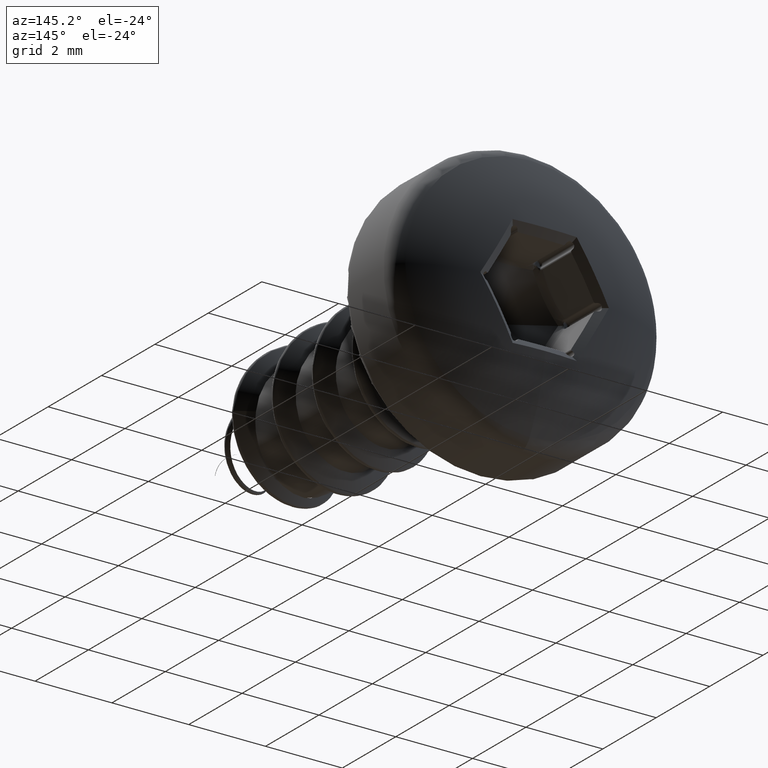
[diagram: clean part render]
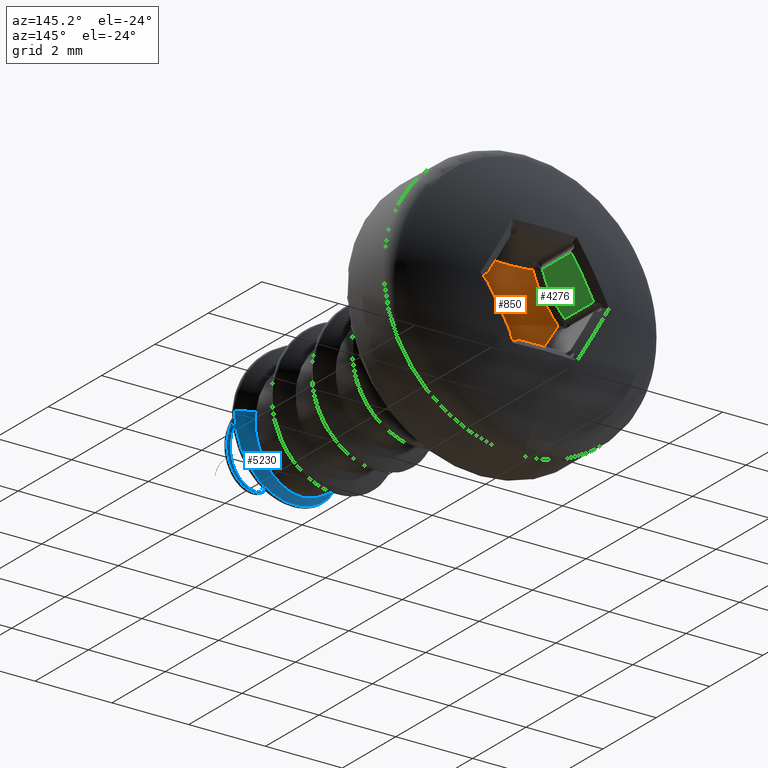
[diagram: same view with three faces highlighted in distinct colors, each labeled with its STEP entity id]
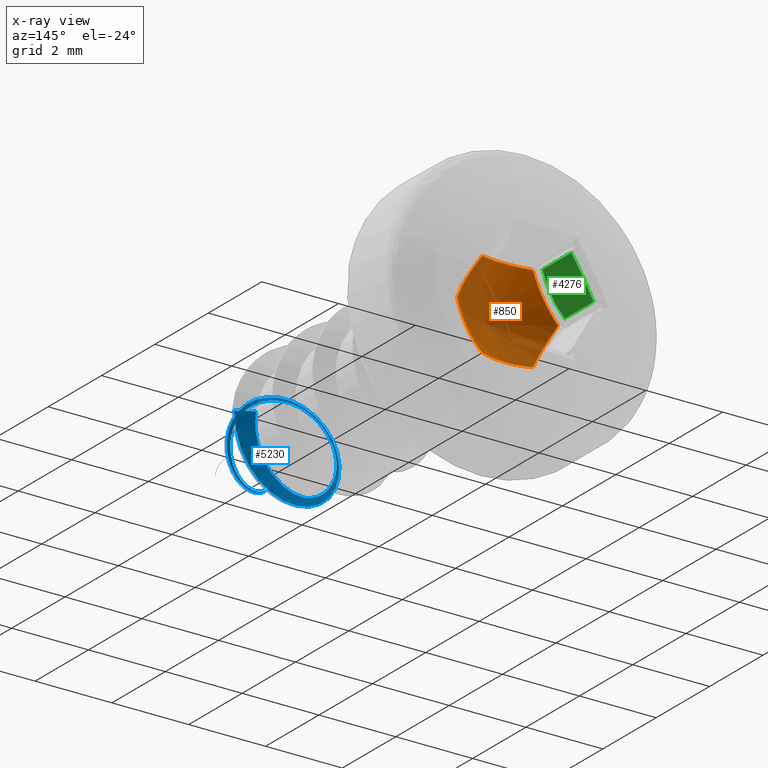
[diagram: x-ray of the same camera — body ghosted, the three highlighted faces saturated]
A machine part, auxiliary view with three faces highlighted in distinct colors.
The next image is the same camera in x-ray (body ghosted, the three faces saturated) — at least one of them is partly hidden behind the body in this view.
Their STEP definitions:

[orange] entity #850 — the highlighted conical surface has half-angle 59 deg.
#2 = EDGE_CURVE ( 'NONE', #4611, #783, #5808, .T. ) ;
#166 = CARTESIAN_POINT ( 'NONE',  ( -1.112084957319993572, 4.725961971731141631, 0.3796862885469854954 ) ) ;
#194 = EDGE_CURVE ( 'NONE', #783, #915, #5091, .T. ) ;
#229 = ORIENTED_EDGE ( 'NONE', *, *, #194, .T. ) ;
#273 = CARTESIAN_POINT ( 'NONE',  ( 0.4423877625365978394, 4.762312854704135567, 1.146654470488976063 ) ) ;
#329 = CONICAL_SURFACE ( 'NONE', #3082, 1664.279482350498029, 1.029744258676649205 ) ;
#434 = CARTESIAN_POINT ( 'NONE',  ( -0.6577215901401132214, 4.823130403246240760, -1.139207211357669003 ) ) ;
#697 = CARTESIAN_POINT ( 'NONE',  ( 0.6577215901401139986, 4.823130403246240760, 1.139207211357668559 ) ) ;
#718 = CARTESIAN_POINT ( 'NONE',  ( -0.6577215901401132214, 4.823130403246240760, -1.139207211357669003 ) ) ;
#719 = FACE_OUTER_BOUND ( 'NONE', #2795, .T. ) ;
#783 = VERTEX_POINT ( 'NONE', #2139 ) ;
#850 = ADVANCED_FACE ( 'NONE', ( #719 ), #329, .F. ) ;
#907 = ORIENTED_EDGE ( 'NONE', *, *, #2, .T. ) ;
#915 = VERTEX_POINT ( 'NONE', #718 ) ;
#1052 = EDGE_CURVE ( 'NONE', #915, #4559, #5213, .T. ) ;
#1126 = CARTESIAN_POINT ( 'NONE',  ( -0.4423875992760734621, 4.762312808593848423, -1.146654476135295697 ) ) ;
#1288 = CARTESIAN_POINT ( 'NONE',  ( 0.7718056320376502910, 4.762330115394765251, -0.9564981454924779136 ) ) ;
#1312 = ORIENTED_EDGE ( 'NONE', *, *, #5253, .T. ) ;
#1593 = CARTESIAN_POINT ( 'NONE',  ( -1.315443180280241098, 4.823130403246093323, 3.604363542660555098E-14 ) ) ;
#1700 = EDGE_CURVE ( 'NONE', #4434, #4015, #2375, .T. ) ;
#1716 = CARTESIAN_POINT ( 'NONE',  ( 1.215157610334600680, 4.762872753609168619, -0.1884570986649835023 ) ) ;
#1756 = CARTESIAN_POINT ( 'NONE',  ( -0.6577215901401055609, 4.823130403246195463, 1.139207211357677885 ) ) ;
#1770 = CARTESIAN_POINT ( 'NONE',  ( 1.108157441244321362, 4.725104345526310645, 0.3867689916802747319 ) ) ;
#1923 = DIRECTION ( 'NONE',  ( 9.376017610177029893E-17, 1.000000000000000000, -0.000000000000000000 ) ) ;
#2139 = CARTESIAN_POINT ( 'NONE',  ( 0.6577215901401056719, 4.823130403246196352, -1.139207211357678773 ) ) ;
#2140 = CARTESIAN_POINT ( 'NONE',  ( 0.6577215901401139986, 4.823130403246240760, 1.139207211357668559 ) ) ;
#2183 = CARTESIAN_POINT ( 'NONE',  ( -0.4439613397488968993, 4.762757286076377383, 1.146600048769018887 ) ) ;
#2354 = CARTESIAN_POINT ( 'NONE',  ( 1.112084957319994016, 4.725961971731145184, -0.3796862885469861060 ) ) ;
#2375 = B_SPLINE_CURVE_WITH_KNOTS ( 'NONE', 3,
 ( #3140, #2183, #4622, #4055, #273, #2140 ),
 .UNSPECIFIED., .F., .F.,
 ( 4, 2, 4 ),
 ( 0.0001355486895624895033, 0.0007987343023282008313, 0.001461919915093911997 ),
 .UNSPECIFIED. ) ;
#2412 = DIRECTION ( 'NONE',  ( -1.000000000000000000, 1.334178587669859971E-16, 0.000000000000000000 ) ) ;
#2484 = CARTESIAN_POINT ( 'NONE',  ( -1.215157610334600236, 4.762872753609167731, 0.1884570986649827806 ) ) ;
#2529 = CARTESIAN_POINT ( 'NONE',  ( 0.4439613564358866893, 4.762757290789347842, -1.146600048191904753 ) ) ;
#2544 = ORIENTED_EDGE ( 'NONE', *, *, #1052, .T. ) ;
#2696 = CARTESIAN_POINT ( 'NONE',  ( 0.8890304928133409001, 4.725104345526317751, -0.7663079996702556462 ) ) ;
#2778 = EDGE_CURVE ( 'NONE', #4559, #4434, #5944, .T. ) ;
#2795 = EDGE_LOOP ( 'NONE', ( #4785, #3168, #1312, #907, #229, #2544 ) ) ;
#3015 = CARTESIAN_POINT ( 'NONE',  ( -0.8890304928133403450, 4.725104345526315974, 0.7663079996702547581 ) ) ;
#3044 = CARTESIAN_POINT ( 'NONE',  ( -0.6577215901401132214, 4.823130403246240760, -1.139207211357669003 ) ) ;
#3082 = AXIS2_PLACEMENT_3D ( 'NONE', #6154, #1923, #2412 ) ;
#3140 = CARTESIAN_POINT ( 'NONE',  ( -0.6577215901401055609, 4.823130403246195463, 1.139207211357677885 ) ) ;
#3168 = ORIENTED_EDGE ( 'NONE', *, *, #1700, .T. ) ;
#3232 = CARTESIAN_POINT ( 'NONE',  ( -1.214254508688005219, 4.762330115394759922, -0.1901542113822895785 ) ) ;
#3254 = CARTESIAN_POINT ( 'NONE',  ( -0.7707874401346460624, 4.762872753609186383, -0.9581288108193288799 ) ) ;
#3612 = CARTESIAN_POINT ( 'NONE',  ( 1.315443180280241986, 4.823130403246093323, -3.649114479088768456E-14 ) ) ;
#3752 = CARTESIAN_POINT ( 'NONE',  ( -1.108157441244321140, 4.725104345526309757, -0.3867689916802747874 ) ) ;
#3839 = CARTESIAN_POINT ( 'NONE',  ( -1.315443180280241098, 4.823130403246093323, 3.604363542660555098E-14 ) ) ;
#3875 = CARTESIAN_POINT ( 'NONE',  ( 1.315443180280241986, 4.823130403246093323, -3.649114479088768456E-14 ) ) ;
#3934 = CARTESIAN_POINT ( 'NONE',  ( -0.6577215901401055609, 4.823130403246195463, 1.139207211357677885 ) ) ;
#3962 = CARTESIAN_POINT ( 'NONE',  ( -0.2227232109130119486, 4.725349403839818940, -1.153036981484701684 ) ) ;
#4015 = VERTEX_POINT ( 'NONE', #4162 ) ;
#4027 = CARTESIAN_POINT ( 'NONE',  ( 0.7707874401346467286, 4.762872753609187271, 0.9581288108193286579 ) ) ;
#4055 = CARTESIAN_POINT ( 'NONE',  ( 0.2227242758644486786, 4.725349469352304155, 1.153036970788550386 ) ) ;
#4095 = CARTESIAN_POINT ( 'NONE',  ( 0.6577215901401056719, 4.823130403246196352, -1.139207211357678773 ) ) ;
#4162 = CARTESIAN_POINT ( 'NONE',  ( 0.6577215901401139986, 4.823130403246240760, 1.139207211357668559 ) ) ;
#4218 = CARTESIAN_POINT ( 'NONE',  ( -0.8848604500102693615, 4.725961971731153177, -0.7732506799322318436 ) ) ;
#4434 = VERTEX_POINT ( 'NONE', #1756 ) ;
#4559 = VERTEX_POINT ( 'NONE', #3839 ) ;
#4611 = VERTEX_POINT ( 'NONE', #3875 ) ;
#4622 = CARTESIAN_POINT ( 'NONE',  ( -0.2261135263075134405, 4.725710431348953300, 1.152978036664366712 ) ) ;
#4785 = ORIENTED_EDGE ( 'NONE', *, *, #2778, .T. ) ;
#4909 = CARTESIAN_POINT ( 'NONE',  ( -0.7718056320376500690, 4.762330115394767027, 0.9564981454924769144 ) ) ;
#5091 = B_SPLINE_CURVE_WITH_KNOTS ( 'NONE', 3,
 ( #5395, #2529, #5876, #3962, #1126, #3044 ),
 .UNSPECIFIED., .F., .F.,
 ( 4, 2, 4 ),
 ( 0.0001355485788095878890, 0.0007987336865442538859, 0.001461918794278919747 ),
 .UNSPECIFIED. ) ;
#5213 = B_SPLINE_CURVE_WITH_KNOTS ( 'NONE', 3,
 ( #434, #3254, #4218, #3752, #3232, #5681 ),
 .UNSPECIFIED., .F., .F.,
 ( 4, 2, 4 ),
 ( 0.0001353299120563234011, 0.0007963451392634085914, 0.001457360366470493917 ),
 .UNSPECIFIED. ) ;
#5253 = EDGE_CURVE ( 'NONE', #4015, #4611, #6121, .T. ) ;
#5395 = CARTESIAN_POINT ( 'NONE',  ( 0.6577215901401056719, 4.823130403246196352, -1.139207211357678773 ) ) ;
#5562 = CARTESIAN_POINT ( 'NONE',  ( 0.8848604500102698056, 4.725961971731153177, 0.7732506799322316215 ) ) ;
#5578 = CARTESIAN_POINT ( 'NONE',  ( 1.214254508688005885, 4.762330115394760810, 0.1901542113822893287 ) ) ;
#5681 = CARTESIAN_POINT ( 'NONE',  ( -1.315443180280241098, 4.823130403246093323, 3.604363542660555098E-14 ) ) ;
#5808 = B_SPLINE_CURVE_WITH_KNOTS ( 'NONE', 3,
 ( #3612, #1716, #2354, #2696, #1288, #4095 ),
 .UNSPECIFIED., .F., .F.,
 ( 4, 2, 4 ),
 ( 0.0001353299120520994037, 0.0007963451392592160900, 0.001457360366466332749 ),
 .UNSPECIFIED. ) ;
#5876 = CARTESIAN_POINT ( 'NONE',  ( 0.2261137077034176268, 4.725710497863953918, -1.152978025804536122 ) ) ;
#5944 = B_SPLINE_CURVE_WITH_KNOTS ( 'NONE', 3,
 ( #1593, #2484, #166, #3015, #4909, #3934 ),
 .UNSPECIFIED., .F., .F.,
 ( 4, 2, 4 ),
 ( 0.0001353299120521001626, 0.0007963451392592165237, 0.001457360366466332749 ),
 .UNSPECIFIED. ) ;
#6108 = CARTESIAN_POINT ( 'NONE',  ( 1.315443180280241986, 4.823130403246093323, -3.649114479088768456E-14 ) ) ;
#6121 = B_SPLINE_CURVE_WITH_KNOTS ( 'NONE', 3,
 ( #697, #4027, #5562, #1770, #5578, #6108 ),
 .UNSPECIFIED., .F., .F.,
 ( 4, 2, 4 ),
 ( 0.0001353299120563271145, 0.0007963451392634121693, 0.001457360366470496953 ),
 .UNSPECIFIED. ) ;
#6154 = CARTESIAN_POINT ( 'NONE',  ( 9.376017610177030415E-14, 1004.032732399647443, 0.000000000000000000 ) ) ;

[blue] entity #5230 — the highlighted face is a freeform B-spline surface patch.
#15 = CARTESIAN_POINT ( 'NONE',  ( 0.2910724249127586427, -2.985507007251310796, -1.398683227082746283 ) ) ;
#50 = VERTEX_POINT ( 'NONE', #3637 ) ;
#65 = EDGE_CURVE ( 'NONE', #4974, #5297, #5767, .T. ) ;
#140 = CARTESIAN_POINT ( 'NONE',  ( -0.3500000000000081934, -4.782457351945705426, -0.6062177826491028654 ) ) ;
#202 = CARTESIAN_POINT ( 'NONE',  ( -1.215112936446172354, -3.365790685278895911, -1.026896597665686972 ) ) ;
#224 = CARTESIAN_POINT ( 'NONE',  ( 1.425000000000000044, -2.551517244269857265, 0.000000000000000000 ) ) ;
#245 = CARTESIAN_POINT ( 'NONE',  ( -0.3286370635538389262, -3.199124018612524267, -1.646956836518761902 ) ) ;
#270 = CARTESIAN_POINT ( 'NONE',  ( 1.377542810691361419, -2.635885557437680937, -0.5035967048519606193 ) ) ;
#313 = CARTESIAN_POINT ( 'NONE',  ( 1.825000000000000622, -2.782457351945706758, 0.000000000000000000 ) ) ;
#346 = CARTESIAN_POINT ( 'NONE',  ( 0.8637158738195148677, -4.312787725621811674, -0.2407972799450457946 ) ) ;
#412 = CARTESIAN_POINT ( 'NONE',  ( -1.152504385821125243, -3.547792733181664993, 0.4421764295433257552 ) ) ;
#441 = EDGE_LOOP ( 'NONE', ( #5943, #2176, #965, #4777, #2056 ) ) ;
#461 = CARTESIAN_POINT ( 'NONE',  ( 1.425000000000000044, -2.551517244269857265, 0.000000000000000000 ) ) ;
#526 = VERTEX_POINT ( 'NONE', #4676 ) ;
#527 = CARTESIAN_POINT ( 'NONE',  ( 0.7713478661076452747, -2.869592576071958057, -1.215508522049268070 ) ) ;
#543 = CARTESIAN_POINT ( 'NONE',  ( 0.9343750198220055481, -4.365790685278921224, -0.3425208174233895786 ) ) ;
#722 = CARTESIAN_POINT ( 'NONE',  ( -0.2495570135497496567, -2.968183910936674774, -1.230733509324474895 ) ) ;
#744 = CARTESIAN_POINT ( 'NONE',  ( 0.3769508537673975090, -4.218183910936516234, -0.3452838060096300454 ) ) ;
#762 = CARTESIAN_POINT ( 'NONE',  ( -1.449999989442328774, -3.449124018612379494, -0.4897829845694904316 ) ) ;
#794 = CARTESIAN_POINT ( 'NONE',  ( 0.1971361078741272477, -4.574742686219300580, -0.7561169507714333715 ) ) ;
#813 = CARTESIAN_POINT ( 'NONE',  ( -0.09033359418842525079, -4.671438926885847387, -0.7335565906680792114 ) ) ;
#878 = CARTESIAN_POINT ( 'NONE',  ( -0.2212017914155754994, -3.100000000000000533, -1.407726808537274499 ) ) ;
#897 = CARTESIAN_POINT ( 'NONE',  ( -0.5048859157163844147, -3.151058054952980747, -1.316550182115567624 ) ) ;
#965 = ORIENTED_EDGE ( 'NONE', *, *, #65, .F. ) ;
#993 = EDGE_CURVE ( 'NONE', #526, #50, #3402, .T. ) ;
#1111 = CARTESIAN_POINT ( 'NONE',  ( 0.2452323364718278498, -3.949124018612154341, 1.207971280575494077 ) ) ;
#1187 = CARTESIAN_POINT ( 'NONE',  ( -0.8941929864502579095, -3.134850577603046418, -0.7502996018324240568 ) ) ;
#1224 = CARTESIAN_POINT ( 'NONE',  ( 1.028124980177995473, -4.199124018612486076, 0.3425208174233680958 ) ) ;
#1243 = CARTESIAN_POINT ( 'NONE',  ( 0.4862695559858366545, -3.969533286281078599, 0.9282655203556284818 ) ) ;
#1262 = CARTESIAN_POINT ( 'NONE',  ( 0.3547111888877985120, -3.935245557336744859, 1.002176578374779803 ) ) ;
#1305 = CARTESIAN_POINT ( 'NONE',  ( -0.07471275920396201753, -3.834038306412550501, 1.105289202884143895 ) ) ;
#1324 = CARTESIAN_POINT ( 'NONE',  ( 1.425000000000000044, -2.551517244269857265, 0.000000000000000000 ) ) ;
#1389 = CARTESIAN_POINT ( 'NONE',  ( -1.250922048510225260, -3.486531909726636069, 0.1630749038296160913 ) ) ;
#1497 = CARTESIAN_POINT ( 'NONE',  ( -0.1614524739692214383, -4.698957933558363997, -0.7693102893549922383 ) ) ;
#1519 = CARTESIAN_POINT ( 'NONE',  ( 1.004358178716948213, -2.802915327783519928, -1.016042825512379011 ) ) ;
#1573 = CARTESIAN_POINT ( 'NONE',  ( 1.777580188601849631, -2.866759215503855263, -0.6444492065217167776 ) ) ;
#1651 = CARTESIAN_POINT ( 'NONE',  ( 0.06367414623259583240, -4.384850577603197408, -0.4179010810754099636 ) ) ;
#1673 = CARTESIAN_POINT ( 'NONE',  ( 0.2304835981738375117, -2.884850577603180533, -1.295872157498531019 ) ) ;
#1691 = CARTESIAN_POINT ( 'NONE',  ( -0.1614524739692214383, -4.698957933558363997, -0.7693102893549922383 ) ) ;
#1710 = CARTESIAN_POINT ( 'NONE',  ( 0.3095636470396072037, -3.115790685279030026, -1.712095485350091595 ) ) ;
#1850 = CARTESIAN_POINT ( 'NONE',  ( -0.8870928577670640358, -3.639911880962698909, 0.7988603505892986067 ) ) ;
#1873 = CARTESIAN_POINT ( 'NONE',  ( -1.266565466727301414, -3.371142915983327715, -0.4289759366826776943 ) ) ;
#1977 = CARTESIAN_POINT ( 'NONE',  ( 1.370445184466979383, -2.643423432364849113, -0.4035307085404408745 ) ) ;
#1998 = CARTESIAN_POINT ( 'NONE',  ( -0.2212017914155754994, -3.100000000000000533, -1.407726808537274499 ) ) ;
#2015 = B_SPLINE_SURFACE_WITH_KNOTS ( 'NONE', 1, 3, ( 
 ( #224, #270, #5498, #1673, #722, #1187, #2158, #3137, #2590, #2631, #2610, #3609, #4514, #4005, #744, #1651, #4578, #3592 ),
 ( #5980, #4090, #4073, #1710, #245, #202, #762, #5010, #2136, #5476, #5519, #4053, #1224, #4555, #3531, #5071, #1691, #5052 ) ),
 .UNSPECIFIED., .F., .F., .F.,
 ( 2, 2 ),
 ( 4, 2, 2, 2, 2, 2, 2, 2, 4 ),
 ( 0.000000000000000000, 1.000000000000000000 ),
 ( 0.000000000000000000, 0.1250000000000000000, 0.2500000000000000000, 0.3750000000000000000, 0.5000000000000000000, 0.6250000000000000000, 0.7500000000000000000, 0.8750000000000000000, 1.000000000000000000 ),
 .UNSPECIFIED. ) ;
#2056 = ORIENTED_EDGE ( 'NONE', *, *, #4414, .F. ) ;
#2136 = CARTESIAN_POINT ( 'NONE',  ( -1.036341075163508041, -3.699124018612487852, 0.9136042039704291851 ) ) ;
#2158 = CARTESIAN_POINT ( 'NONE',  ( -1.049999989442271797, -3.218183910936530001, -0.3501566548926647315 ) ) ;
#2176 = ORIENTED_EDGE ( 'NONE', *, *, #2333, .T. ) ;
#2258 = CARTESIAN_POINT ( 'NONE',  ( -1.154250747528284604, -3.316028063407792548, -0.7213190045089044045 ) ) ;
#2260 = FACE_OUTER_BOUND ( 'NONE', #441, .T. ) ;
#2333 = EDGE_CURVE ( 'NONE', #50, #5297, #3181, .T. ) ;
#2443 = CARTESIAN_POINT ( 'NONE',  ( 0.8766426635281913127, -4.115790685279258732, 0.7351732191658303384 ) ) ;
#2590 = CARTESIAN_POINT ( 'NONE',  ( -0.7154211285333997861, -3.468183910936638359, 0.6370072061939515695 ) ) ;
#2610 = CARTESIAN_POINT ( 'NONE',  ( 0.1661522805498469590, -3.718183910936304848, 0.7917479567978995547 ) ) ;
#2631 = CARTESIAN_POINT ( 'NONE',  ( -0.1470788714665896280, -3.634850577603074839, 0.8568866153342112879 ) ) ;
#2652 = CARTESIAN_POINT ( 'NONE',  ( -0.2292983938999358928, -4.718963688808326395, -0.6805874663744676534 ) ) ;
#2670 = CARTESIAN_POINT ( 'NONE',  ( 0.3433881346294198056, -4.527295736866264519, -0.7250064417299566522 ) ) ;
#2731 = CARTESIAN_POINT ( 'NONE',  ( -0.3669187034780518331, -3.125836819272294953, -1.373183088710046684 ) ) ;
#2797 = CARTESIAN_POINT ( 'NONE',  ( -0.7577284027252602083, -3.203973712445779665, -1.161262773399216908 ) ) ;
#2865 = CARTESIAN_POINT ( 'NONE',  ( 1.075937534604952894, -2.780384473834601078, -0.9399425624635784349 ) ) ;
#2887 = CARTESIAN_POINT ( 'NONE',  ( 1.251802771672325898, -2.712887808348475538, -0.6886106251453084637 ) ) ;
#2971 = CARTESIAN_POINT ( 'NONE',  ( -0.3500000000000081934, -4.782457351945705426, -0.6062177826491028654 ) ) ;
#2997 = CARTESIAN_POINT ( 'NONE',  ( 1.028124980177995473, -4.199124018612486076, 0.3425208174233680958 ) ) ;
#3137 = CARTESIAN_POINT ( 'NONE',  ( -0.9562500105577284026, -3.384850577603184529, 0.3501566548926757783 ) ) ;
#3181 = B_SPLINE_CURVE_WITH_KNOTS ( 'NONE', 3,
 ( #1998, #4381, #3871, #5785, #15, #5289, #527, #1519, #2865, #3854, #2887, #4848, #1977, #4304, #5330, #5275 ),
 .UNSPECIFIED., .F., .F.,
 ( 4, 2, 2, 2, 2, 2, 2, 4 ),
 ( 0.000000000000000000, 0.0003146649326235700407, 0.0006293298652471400814, 0.001258659730494280380, 0.001573324663117850420, 0.001887989595741420461, 0.002202654528364990719, 0.002517319460988560326 ),
 .UNSPECIFIED. ) ;
#3402 = B_SPLINE_CURVE_WITH_KNOTS ( 'NONE', 3,
 ( #6063, #2652, #813, #794, #2670, #5115, #5558, #346, #4128, #5576, #5996, #5090, #4088, #1243, #1262, #4596, #1305, #4639, #4751, #4685, #1850, #3730, #412, #1389, #4169, #1873, #2258, #5594, #2797, #897, #2731, #878 ),
 .UNSPECIFIED., .F., .F.,
 ( 4, 2, 2, 2, 2, 2, 2, 2, 2, 2, 2, 2, 2, 2, 2, 4 ),
 ( 0.000000000000000000, 0.0004536868531561506724, 0.0009073737063123013449, 0.001361060559468451909, 0.001814747412624602690, 0.002268434265780753471, 0.002722121118936903818, 0.003175807972093054599, 0.003629494825249205379, 0.004083181678405356160, 0.004536868531561506941, 0.004990555384717657722, 0.005444242237873807636, 0.006351615944186110065, 0.006805302797342260845, 0.007258989650498412494 ),
 .UNSPECIFIED. ) ;
#3531 = CARTESIAN_POINT ( 'NONE',  ( 0.6978707893731503908, -4.449124018612364395, -0.6218808101510133746 ) ) ;
#3592 = CARTESIAN_POINT ( 'NONE',  ( -0.1500000000000014655, -4.551517244269855489, -0.2598076211353305687 ) ) ;
#3609 = CARTESIAN_POINT ( 'NONE',  ( 0.5557227194501633827, -3.884850577603408794, 0.4585762199158776586 ) ) ;
#3615 = DIRECTION ( 'NONE',  ( -0.4330127018922338977, -0.4999999999999978351, -0.7499999999999930056 ) ) ;
#3637 = CARTESIAN_POINT ( 'NONE',  ( -0.2212017914155754994, -3.100000000000000533, -1.407726808537274499 ) ) ;
#3730 = CARTESIAN_POINT ( 'NONE',  ( -1.078841884775891602, -3.578410738671653490, 0.5717045117688255296 ) ) ;
#3733 = VERTEX_POINT ( 'NONE', #2971 ) ;
#3854 = CARTESIAN_POINT ( 'NONE',  ( 1.199397470748139405, -2.735410164448825565, -0.7762598187883669176 ) ) ;
#3868 = CARTESIAN_POINT ( 'NONE',  ( -0.2261589248364755389, -3.865790685278924332, 1.273109940585289035 ) ) ;
#3871 = CARTESIAN_POINT ( 'NONE',  ( -0.01638429539609564944, -3.054979078370779089, -1.428591587245245709 ) ) ;
#3933 = CARTESIAN_POINT ( 'NONE',  ( 1.374811352960387589, -2.949124018612384379, -1.205327593648740869 ) ) ;
#4005 = CARTESIAN_POINT ( 'NONE',  ( 0.5343750198220255099, -4.134850577603072175, -0.2028944969450635905 ) ) ;
#4053 = CARTESIAN_POINT ( 'NONE',  ( 0.8766426635281913127, -4.115790685279258732, 0.7351732191658303384 ) ) ;
#4073 = CARTESIAN_POINT ( 'NONE',  ( 1.374811352960387589, -2.949124018612384379, -1.205327593648740869 ) ) ;
#4088 = CARTESIAN_POINT ( 'NONE',  ( 0.7037827611600597777, -4.042164322432959978, 0.7326251480044406739 ) ) ;
#4090 = CARTESIAN_POINT ( 'NONE',  ( 1.777580188601849631, -2.866759215503855263, -0.6444492065217167776 ) ) ;
#4128 = CARTESIAN_POINT ( 'NONE',  ( 0.9097095684747721345, -4.270876098504175822, -0.09856042993295456578 ) ) ;
#4169 = CARTESIAN_POINT ( 'NONE',  ( -1.274654445801603808, -3.456660341017812943, 0.01533419918280363135 ) ) ;
#4304 = CARTESIAN_POINT ( 'NONE',  ( 1.413846879374725196, -2.597405136205420462, -0.2049244691251765615 ) ) ;
#4355 = CARTESIAN_POINT ( 'NONE',  ( 0.1427542106268323563, -4.615790685279045569, -0.8341243999615852722 ) ) ;
#4381 = CARTESIAN_POINT ( 'NONE',  ( -0.1188225033146842052, -3.077446465720312663, -1.423814079017901024 ) ) ;
#4393 = CARTESIAN_POINT ( 'NONE',  ( 0.6978707893731503908, -4.449124018612364395, -0.6218808101510133746 ) ) ;
#4414 = EDGE_CURVE ( 'NONE', #526, #3733, #5766, .T. ) ;
#4436 = CARTESIAN_POINT ( 'NONE',  ( 0.3095636470396072037, -3.115790685279030026, -1.712095485350091595 ) ) ;
#4514 = CARTESIAN_POINT ( 'NONE',  ( 0.6281249801779743569, -3.968183910936637027, 0.2028944969450532376 ) ) ;
#4555 = CARTESIAN_POINT ( 'NONE',  ( 0.9343750198220055481, -4.365790685278921224, -0.3425208174233895786 ) ) ;
#4578 = CARTESIAN_POINT ( 'NONE',  ( -0.08279637052989104185, -4.468244439935300072, -0.3526950062098433980 ) ) ;
#4596 = CARTESIAN_POINT ( 'NONE',  ( 0.07513604498346025673, -3.867917149045881686, 1.090218869520123146 ) ) ;
#4639 = CARTESIAN_POINT ( 'NONE',  ( -0.3672252844547740924, -3.766664793653013099, 1.076654233577023279 ) ) ;
#4676 = CARTESIAN_POINT ( 'NONE',  ( -0.3403670095252961936, -4.771334132658353155, -0.5895329537180754587 ) ) ;
#4685 = CARTESIAN_POINT ( 'NONE',  ( -0.7715470462806451879, -3.669949447769377038, 0.8934074958385477272 ) ) ;
#4751 = CARTESIAN_POINT ( 'NONE',  ( -0.5102411786852459885, -3.733357172569458093, 1.033330897166236051 ) ) ;
#4777 = ORIENTED_EDGE ( 'NONE', *, *, #5950, .T. ) ;
#4814 = CARTESIAN_POINT ( 'NONE',  ( 1.825000000000000622, -2.782457351945706758, 0.000000000000000000 ) ) ;
#4848 = CARTESIAN_POINT ( 'NONE',  ( 1.337686316991904878, -2.666767841403021144, -0.5017868965628345945 ) ) ;
#4865 = CARTESIAN_POINT ( 'NONE',  ( -0.3286370635538389262, -3.199124018612524267, -1.646956836518761902 ) ) ;
#4908 = CARTESIAN_POINT ( 'NONE',  ( -1.215112936446172354, -3.365790685278895911, -1.026896597665686972 ) ) ;
#4947 = VECTOR ( 'NONE', #3615, 1000.000000000000114 ) ;
#4974 = VERTEX_POINT ( 'NONE', #4814 ) ;
#5010 = CARTESIAN_POINT ( 'NONE',  ( -1.356250010557672692, -3.615790685279034022, 0.4897829845695070849 ) ) ;
#5052 = CARTESIAN_POINT ( 'NONE',  ( -0.3500000000000081934, -4.782457351945705426, -0.6062177826491028654 ) ) ;
#5071 = CARTESIAN_POINT ( 'NONE',  ( 0.1427542106268323563, -4.615790685279045569, -0.8341243999615852722 ) ) ;
#5090 = CARTESIAN_POINT ( 'NONE',  ( 0.7908510598336687680, -4.079859447565466368, 0.6110740520767036221 ) ) ;
#5097 = CARTESIAN_POINT ( 'NONE',  ( -0.1500000000000014655, -4.551517244269855489, -0.2598076211353305687 ) ) ;
#5115 = CARTESIAN_POINT ( 'NONE',  ( 0.5982961887217279617, -4.439682362947792171, -0.5905180750065301964 ) ) ;
#5230 = ADVANCED_FACE ( 'NONE', ( #2260 ), #2015, .T. ) ;
#5275 = CARTESIAN_POINT ( 'NONE',  ( 1.425000000000000044, -2.551517244269857265, 0.000000000000000000 ) ) ;
#5289 = CARTESIAN_POINT ( 'NONE',  ( 0.5855621278513225558, -2.915742491333540798, -1.315064142730316687 ) ) ;
#5297 = VERTEX_POINT ( 'NONE', #1324 ) ;
#5308 = CARTESIAN_POINT ( 'NONE',  ( 1.825000000000000622, -2.782457351945706758, 0.000000000000000000 ) ) ;
#5330 = CARTESIAN_POINT ( 'NONE',  ( 1.425000000000000488, -2.574497095464311602, -0.1035413075461212029 ) ) ;
#5365 = CARTESIAN_POINT ( 'NONE',  ( -1.356250010557672692, -3.615790685279034022, 0.4897829845695070849 ) ) ;
#5382 = CARTESIAN_POINT ( 'NONE',  ( -1.036341075163508041, -3.699124018612487852, 0.9136042039704291851 ) ) ;
#5425 = B_SPLINE_CURVE_WITH_KNOTS ( 'NONE', 3,
 ( #5308, #1573, #3933, #4436, #4865, #4908, #5860, #5365, #5382, #3868, #1111, #2443, #2997, #543, #4393, #4355, #1497, #140 ),
 .UNSPECIFIED., .F., .F.,
 ( 4, 2, 2, 2, 2, 2, 2, 2, 4 ),
 ( 0.000000000000000000, 0.1250000000000000000, 0.2500000000000000000, 0.3750000000000000000, 0.5000000000000000000, 0.6250000000000000000, 0.7500000000000000000, 0.8750000000000000000, 1.000000000000000000 ),
 .UNSPECIFIED. ) ;
#5476 = CARTESIAN_POINT ( 'NONE',  ( -0.2261589248364755389, -3.865790685278924332, 1.273109940585289035 ) ) ;
#5498 = CARTESIAN_POINT ( 'NONE',  ( 1.053891401826158258, -2.718183910936534886, -0.9287305984727486363 ) ) ;
#5519 = CARTESIAN_POINT ( 'NONE',  ( 0.2452323364718278498, -3.949124018612154341, 1.207971280575494077 ) ) ;
#5558 = CARTESIAN_POINT ( 'NONE',  ( 0.7080018378692878311, -4.397500148432953004, -0.4872161230424385536 ) ) ;
#5576 = CARTESIAN_POINT ( 'NONE',  ( 0.9299376531591132533, -4.192741323955758936, 0.1912911186951452014 ) ) ;
#5594 = CARTESIAN_POINT ( 'NONE',  ( -0.8710390318682249555, -3.231806217298459849, -1.062921487902042106 ) ) ;
#5766 = LINE ( 'NONE', #5097, #4947 ) ;
#5767 = B_SPLINE_CURVE_WITH_KNOTS ( 'NONE', 1,
 ( #313, #461 ),
 .UNSPECIFIED., .F., .F.,
 ( 2, 2 ),
 ( 0.000000000000000000, 1.000000000000000000 ),
 .UNSPECIFIED. ) ;
#5785 = CARTESIAN_POINT ( 'NONE',  ( 0.1883504277005776106, -3.009062453514599333, -1.416215550214205976 ) ) ;
#5860 = CARTESIAN_POINT ( 'NONE',  ( -1.449999989442328774, -3.449124018612379494, -0.4897829845694904316 ) ) ;
#5943 = ORIENTED_EDGE ( 'NONE', *, *, #993, .T. ) ;
#5950 = EDGE_CURVE ( 'NONE', #4974, #3733, #5425, .T. ) ;
#5980 = CARTESIAN_POINT ( 'NONE',  ( 1.825000000000000622, -2.782457351945706758, 0.000000000000000000 ) ) ;
#5996 = CARTESIAN_POINT ( 'NONE',  ( 0.9045736708219614952, -4.155516923015345476, 0.3392939620943810075 ) ) ;
#6063 = CARTESIAN_POINT ( 'NONE',  ( -0.3403670095252961936, -4.771334132658353155, -0.5895329537180754587 ) ) ;

[green] entity #4276 — the highlighted planar face has unit normal (-0.866, 0, 0.5).
#337 = ORIENTED_EDGE ( 'NONE', *, *, #516, .T. ) ;
#496 = CARTESIAN_POINT ( 'NONE',  ( -1.181999703525749457, 4.897136503964480525, 0.4527164589620513713 ) ) ;
#516 = EDGE_CURVE ( 'NONE', #1961, #5056, #552, .T. ) ;
#552 = LINE ( 'NONE', #967, #4197 ) ;
#692 = ORIENTED_EDGE ( 'NONE', *, *, #5317, .T. ) ;
#880 = CARTESIAN_POINT ( 'NONE',  ( -0.8871727791182069112, 4.931805468706108364, 0.9633716714751833221 ) ) ;
#967 = CARTESIAN_POINT ( 'NONE',  ( -0.7923985146056866657, 4.899999999999999467, 1.127525512860841017 ) ) ;
#1279 = B_SPLINE_CURVE_WITH_KNOTS ( 'NONE', 3,
 ( #3235, #880, #4732, #496, #1833, #6151 ),
 .UNSPECIFIED., .F., .F.,
 ( 4, 2, 4 ),
 ( 4.294753675689170797E-05, 0.0006317656081281182359, 0.001220583679499344723 ),
 .UNSPECIFIED. ) ;
#1296 = AXIS2_PLACEMENT_3D ( 'NONE', #4864, #3014, #3889 ) ;
#1429 = CARTESIAN_POINT ( 'NONE',  ( -1.372664994855409493, 4.986893808180953513, 0.1224744871391586221 ) ) ;
#1731 = FACE_OUTER_BOUND ( 'NONE', #4416, .T. ) ;
#1833 = CARTESIAN_POINT ( 'NONE',  ( -1.278092918184690729, 4.931922992092061087, 0.2862781289101424265 ) ) ;
#1930 = ORIENTED_EDGE ( 'NONE', *, *, #3205, .T. ) ;
#1957 = CARTESIAN_POINT ( 'NONE',  ( -1.372665049530400028, 6.072809920824338015, 0.1224743924392964062 ) ) ;
#1961 = VERTEX_POINT ( 'NONE', #3092 ) ;
#2415 = CARTESIAN_POINT ( 'NONE',  ( -1.372664994855409493, 4.899999999999999467, 0.1224744871391584278 ) ) ;
#2456 = DIRECTION ( 'NONE',  ( 0.000000000000000000, 1.000000000000000000, -0.000000000000000000 ) ) ;
#2751 = VERTEX_POINT ( 'NONE', #1429 ) ;
#3014 = DIRECTION ( 'NONE',  ( -0.8660254037844387076, 0.000000000000000000, 0.4999999999999999445 ) ) ;
#3071 = CARTESIAN_POINT ( 'NONE',  ( -1.181695875693665077, 6.096427063428668802, 0.4532427042039747223 ) ) ;
#3074 = VECTOR ( 'NONE', #2456, 1000.000000000000000 ) ;
#3092 = CARTESIAN_POINT ( 'NONE',  ( -0.7923985274280113122, 6.072811979709123342, 1.127525490651923645 ) ) ;
#3098 = CARTESIAN_POINT ( 'NONE',  ( -1.372665049530400028, 6.072809920824338015, 0.1224743924392964062 ) ) ;
#3205 = EDGE_CURVE ( 'NONE', #2751, #5468, #5391, .T. ) ;
#3235 = CARTESIAN_POINT ( 'NONE',  ( -0.7923985146056904405, 4.986893808180951737, 1.127525512860834356 ) ) ;
#3281 = DIRECTION ( 'NONE',  ( -0.000000000000000000, -1.000000000000000000, 0.000000000000000000 ) ) ;
#3495 = CARTESIAN_POINT ( 'NONE',  ( -0.7923985146056904405, 4.986893808180951737, 1.127525512860834356 ) ) ;
#3889 = DIRECTION ( 'NONE',  ( 0.4999999999999999445, 0.000000000000000000, 0.8660254037844387076 ) ) ;
#4197 = VECTOR ( 'NONE', #3281, 1000.000000000000000 ) ;
#4276 = ADVANCED_FACE ( 'NONE', ( #1731 ), #4843, .F. ) ;
#4416 = EDGE_LOOP ( 'NONE', ( #5304, #337, #692, #1930 ) ) ;
#4535 = CARTESIAN_POINT ( 'NONE',  ( -0.9830838911046126949, 6.096411695038279177, 0.7972487525043006062 ) ) ;
#4605 = B_SPLINE_CURVE_WITH_KNOTS ( 'NONE', 3,
 ( #3098, #3071, #4535, #6018 ),
 .UNSPECIFIED., .F., .F.,
 ( 4, 4 ),
 ( 0.1000517408598615016, 0.8999209556096917639 ),
 .UNSPECIFIED. ) ;
#4732 = CARTESIAN_POINT ( 'NONE',  ( -0.9845961834944472191, 4.896790297916125745, 0.7946293852492073428 ) ) ;
#4843 = PLANE ( 'NONE',  #1296 ) ;
#4864 = CARTESIAN_POINT ( 'NONE',  ( -1.443375672974064328, 4.899999999999999467, -6.537161907098661453E-16 ) ) ;
#5056 = VERTEX_POINT ( 'NONE', #3495 ) ;
#5224 = EDGE_CURVE ( 'NONE', #5468, #1961, #4605, .T. ) ;
#5304 = ORIENTED_EDGE ( 'NONE', *, *, #5224, .T. ) ;
#5317 = EDGE_CURVE ( 'NONE', #5056, #2751, #1279, .T. ) ;
#5391 = LINE ( 'NONE', #2415, #3074 ) ;
#5468 = VERTEX_POINT ( 'NONE', #1957 ) ;
#6018 = CARTESIAN_POINT ( 'NONE',  ( -0.7923985274280113122, 6.072811979709123342, 1.127525490651923645 ) ) ;
#6151 = CARTESIAN_POINT ( 'NONE',  ( -1.372664994855409493, 4.986893808180953513, 0.1224744871391586221 ) ) ;